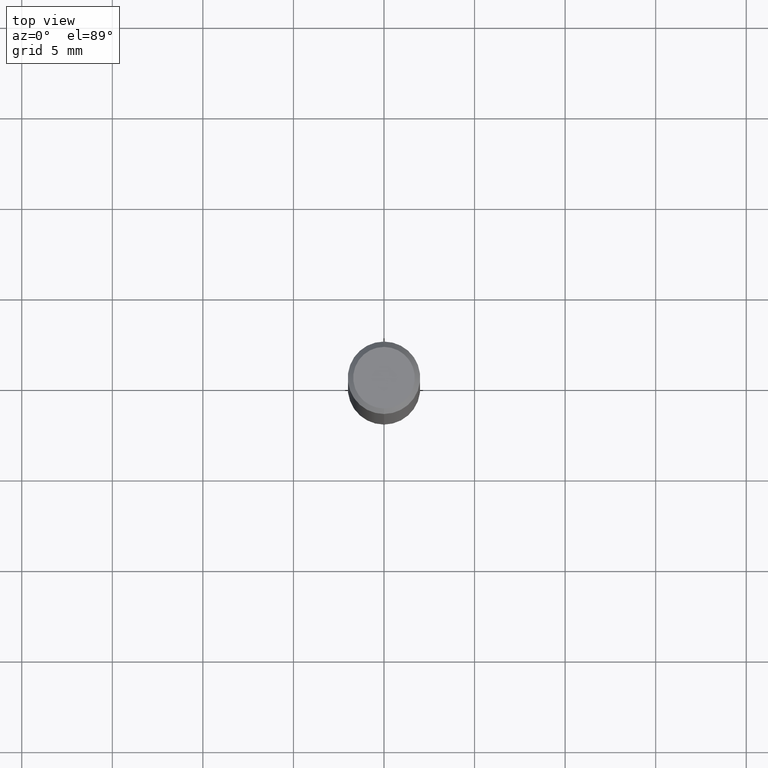
[diagram: clean part render]
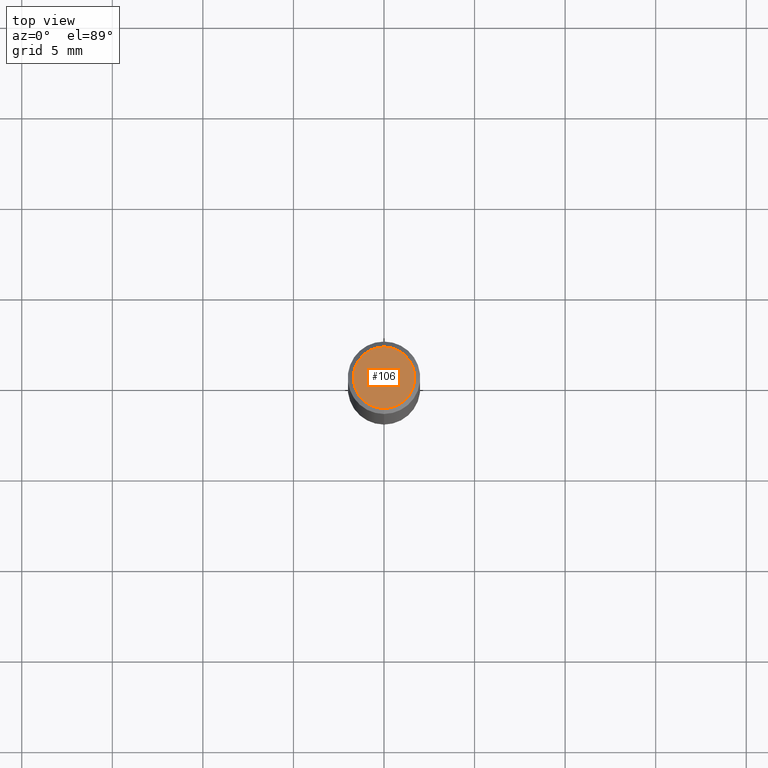
[diagram: same view with one face highlighted and labeled with its STEP entity id]
A machine part, top view. The second image highlights one B-rep face of the part: STEP entity #106.
In plain terms, the highlighted planar face has unit normal (-0, 0, 1).
Its self-contained STEP definition (entity closure, byte-faithful):
#86=EDGE_CURVE('',#94,#186,#211,.T.);
#94=VERTEX_POINT('',#219);
#106=ADVANCED_FACE('',(#233),#234,.T.);
#130=EDGE_CURVE('',#186,#94,#261,.T.);
#186=VERTEX_POINT('',#326);
#211=CIRCLE('',#344,1.7);
#219=CARTESIAN_POINT('',(2.08183080149804E-016,-1.7,0.0));
#233=FACE_OUTER_BOUND('',#369,.T.);
#234=PLANE('',#370);
#261=CIRCLE('',#408,1.7);
#326=CARTESIAN_POINT('',(0.0,1.7,0.0));
#344=AXIS2_PLACEMENT_3D('',#493,#494,#495);
#369=EDGE_LOOP('',(#515,#516));
#370=AXIS2_PLACEMENT_3D('',#517,#518,#519);
#408=AXIS2_PLACEMENT_3D('',#557,#558,#559);
#493=CARTESIAN_POINT('',(0.0,0.0,0.0));
#494=DIRECTION('',(0.0,0.0,-1.0));
#495=DIRECTION('',(0.0,1.0,0.0));
#515=ORIENTED_EDGE('',*,*,#130,.F.);
#516=ORIENTED_EDGE('',*,*,#86,.F.);
#517=CARTESIAN_POINT('',(0.0,0.85,0.0));
#518=DIRECTION('',(-0.0,0.0,1.0));
#519=DIRECTION('',(0.0,-1.0,0.0));
#557=CARTESIAN_POINT('',(0.0,0.0,0.0));
#558=DIRECTION('',(0.0,0.0,-1.0));
#559=DIRECTION('',(0.0,1.0,0.0));